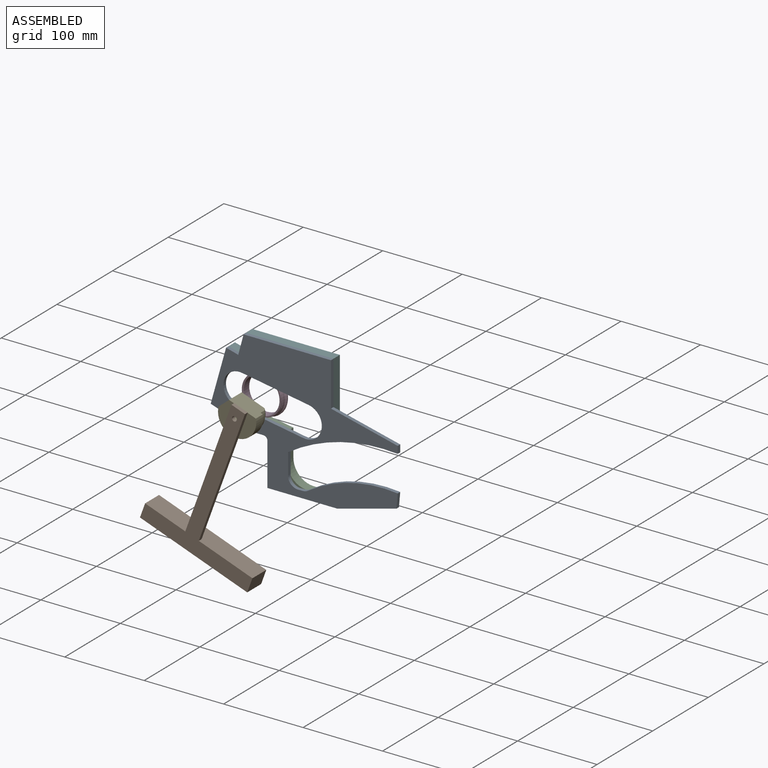
[diagram: assembled view]
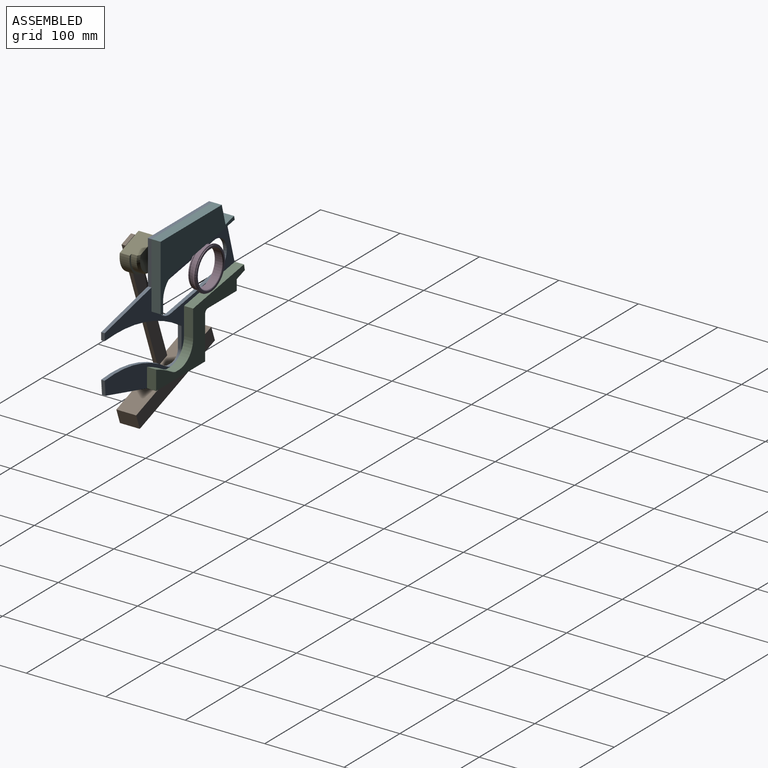
[diagram: assembled view, second angle]
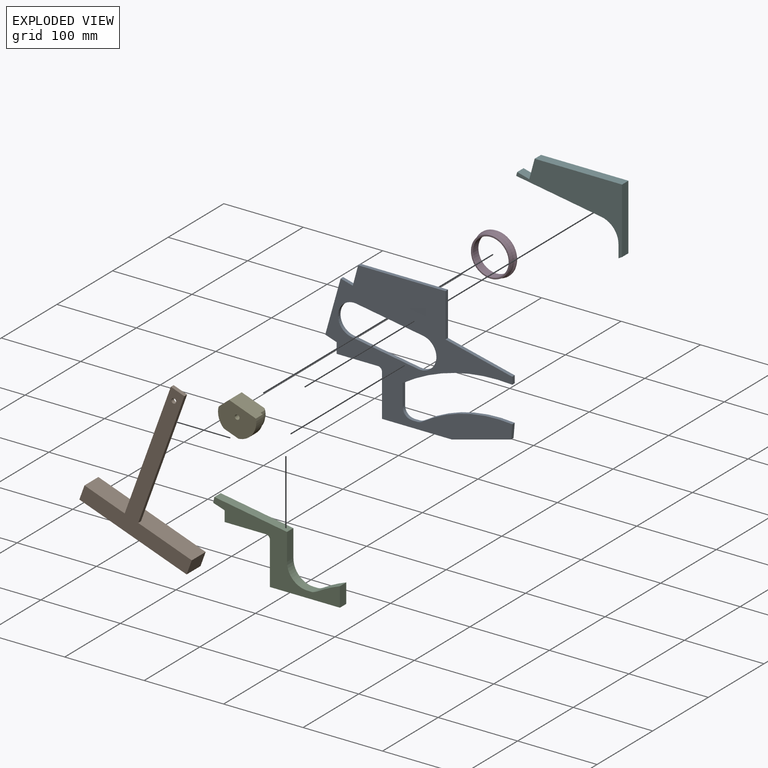
[diagram: exploded view]
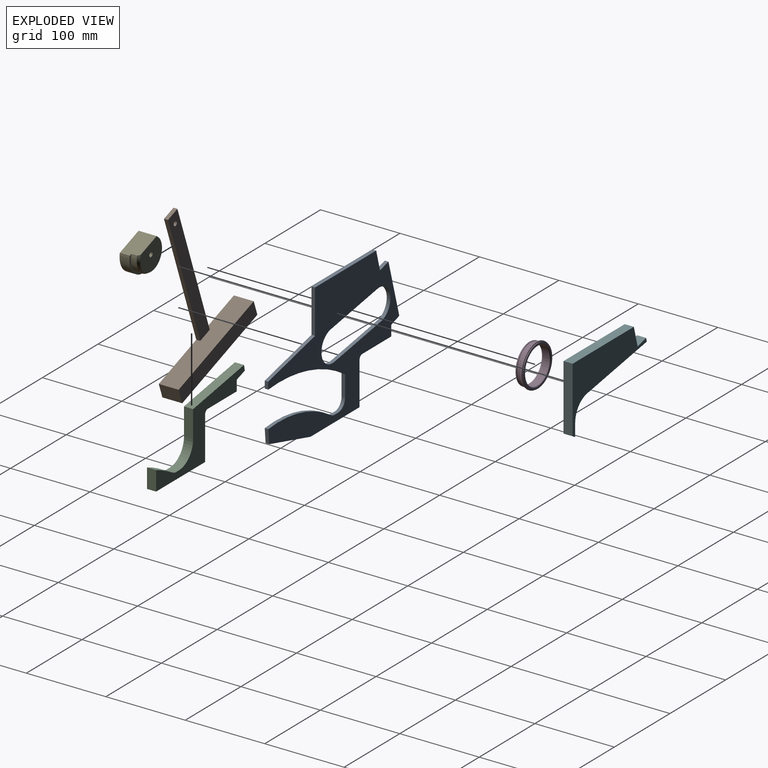
[diagram: exploded view, second angle]
ASSEMBLY  parts=6 mates=5
PART A: 28 faces, bbox 235.4x4.5x166.7 mm
  f0: cylinder r=20mm len=39.73mm, axis (0,1,0), area 282.7mm2, adj f1,f25,f26,f27
  f1: plane 83.83x14.03mm, normal (0.17,0,0.99), area 382.5mm2, adj f0,f2,f26,f27
  f2: cylinder r=20mm len=39.73mm, axis (0,1,0), area 282.7mm2, adj f1,f25,f26,f27
  f3: plane 14.4x4.7mm, normal (-0.31,0,-0.95), area 68.2mm2, adj f4,f24,f26,f27
  f4: plane 13.3x4.5mm, normal (-1,0,0), area 59.9mm2, adj f3,f5,f26,f27
  f5: plane 52x4.5mm, normal (0,0,-1), area 234mm2, adj f4,f6,f26,f27
  f6: cylinder r=5mm len=5mm, axis (0,1,0), area 35.3mm2, adj f5,f7,f26,f27
  f7: plane 53.7x4.5mm, normal (-1,0,0), area 241.6mm2, adj f6,f8,f26,f27
  f8: plane 88.1x4.5mm, normal (0,0,-1), area 396.4mm2, adj f7,f9,f26,f27
  f9: plane 74.35x19.92mm, normal (0.26,0,-0.97), area 346.4mm2, adj f8,f10,f26,f27
  f10: plane 17.72x4.5mm, normal (1,0,-0.09), area 80mm2, adj f9,f11,f26,f27
  f11: cylinder r=170.5mm len=112.87mm, axis (0,1,0), area 533mm2, adj f10,f12,f26,f27
  f12: cylinder r=12.3mm len=6.77mm, axis (0,1,0), area 32.3mm2, adj f11,f13,f26,f27
  f13: plane 6.06x4.5mm, normal (0,0,1), area 27.3mm2, adj f12,f14,f26,f27
  f14: cylinder r=12.3mm len=12.3mm, axis (0,1,0), area 86.9mm2, adj f13,f15,f26,f27
  f15: plane 26.26x4.5mm, normal (1,0,0), area 118.2mm2, adj f14,f16,f26,f27
  f16: cylinder r=1mm len=4.5mm, axis (0,1,0), area 4.4mm2, adj f15,f17,f26,f27
  f17: cylinder r=215.28mm len=137.55mm, axis (0,1,0), area 650.6mm2, adj f16,f18,f26,f27
  f18: plane 9.06x4.5mm, normal (1,0,0), area 40.8mm2, adj f17,f19,f26,f27
  f19: plane 84x20mm, normal (0.23,0,0.97), area 388.6mm2, adj f18,f20,f26,f27
  f20: plane 55x4.5mm, normal (1,0,0), area 247.5mm2, adj f19,f21,f26,f27
  f21: plane 110x4.5mm, normal (0,0,1), area 495mm2, adj f20,f22,f26,f27
  f22: plane 25.09x6.72mm, normal (-0.97,0,0.26), area 116.9mm2, adj f21,f23,f26,f27
  f23: plane 15.28x4.5mm, normal (0.26,0,0.97), area 71.2mm2, adj f22,f24,f26,f27
  f24: plane 69x19.4mm, normal (-0.96,0,0.27), area 322.5mm2, adj f3,f23,f26,f27
  f25: plane 83.83x14.03mm, normal (-0.17,0,-0.99), area 382.5mm2, adj f0,f2,f26,f27
  f26: plane 235.4x166.7mm, normal (0,-1,0), area 16034.4mm2, adj f0,f1,f2,f3,f4,f5,f6,f7
  f27: plane 235.4x166.7mm, normal (0,1,0), area 16034.4mm2, adj f0,f1,f2,f3,f4,f5,f6,f7
PART B: 11 faces, bbox 143.7x25x188.9 mm
  f0: plane 18.11x5mm, normal (0,0,1), area 90.5mm2, adj f1,f3,f4,f5
  f1: plane 169.91x5mm, normal (-1,0,0), area 849.6mm2, adj f0,f4,f5,f6
  f2: cylinder r=3mm len=6mm, axis (0,1,0), area 94.2mm2, adj f4,f5
  f3: plane 169.91x5mm, normal (1,0,0), area 849.6mm2, adj f0,f4,f5,f6
  f4: plane 188.86x143.7mm, normal (0,-1,0), area 5771.3mm2, adj f0,f1,f2,f3,f6,f7,f8,f9
  f5: plane 169.91x18.11mm, normal (0,1,0), area 3048.3mm2, adj f0,f1,f2,f3,f6
  f6: plane 143.7x25mm, normal (0,0,1), area 3501.8mm2, adj f1,f3,f4,f5,f7,f9,f10
  f7: plane 25x18.95mm, normal (-1,0,0), area 473.8mm2, adj f4,f6,f8,f10
  f8: plane 143.7x25mm, normal (0,0,-1), area 3592.4mm2, adj f4,f7,f9,f10
  f9: plane 25x18.95mm, normal (1,0,0), area 473.8mm2, adj f4,f6,f8,f10
  f10: plane 143.7x18.95mm, normal (0,1,0), area 2723mm2, adj f6,f7,f8,f9
PART C: 16 faces, bbox 159.5x11.5x83.7 mm
  f0: plane 91.5x15.31mm, normal (0.17,0,0.99), area 1066.9mm2, adj f1,f13,f14,f15
  f1: plane 11.5x7mm, normal (-0.98,0,0.2), area 82.1mm2, adj f0,f2,f14,f15
  f2: plane 14.4x11.5mm, normal (-0.31,0,-0.95), area 174.2mm2, adj f1,f3,f14,f15
  f3: plane 13.3x11.5mm, normal (-1,0,0), area 152.9mm2, adj f2,f4,f14,f15
  f4: plane 52x11.5mm, normal (0,0,-1), area 598mm2, adj f3,f5,f14,f15
  f5: cylinder r=5mm len=11.5mm, axis (0,1,0), area 90.3mm2, adj f4,f6,f14,f15
  f6: plane 53.7x11.5mm, normal (-1,0,0), area 617.5mm2, adj f5,f7,f14,f15
  f7: plane 88.1x11.5mm, normal (0,0,-1), area 1013.1mm2, adj f6,f8,f14,f15
  f8: plane 24.46x11.5mm, normal (1,0,0), area 281.3mm2, adj f7,f9,f14,f15
  f9: cylinder r=166.3mm len=28.04mm, axis (0,1,0), area 357.3mm2, adj f8,f10,f14,f15
  f10: cylinder r=25.7mm len=11.5mm, axis (0,1,0), area 81.1mm2, adj f9,f11,f14,f15
  f11: plane 11.5x7.33mm, normal (0,0,1), area 84.2mm2, adj f10,f12,f14,f15
  f12: cylinder r=25.7mm len=25.68mm, axis (0,1,0), area 453.2mm2, adj f11,f13,f14,f15
  f13: plane 34.21x11.5mm, normal (1,0,0), area 393.4mm2, adj f0,f12,f14,f15
  f14: plane 159.5x83.7mm, normal (0,-1,0), area 3650.3mm2, adj f0,f1,f2,f3,f4,f5,f6,f7
  f15: plane 159.5x83.7mm, normal (0,1,0), area 3650.3mm2, adj f0,f1,f2,f3,f4,f5,f6,f7
PART D: 28 faces, bbox 61.4x61.4x11.5 mm
  f0: plane 53.4x53.4mm, normal (0,0,1), area 164.6mm2, adj f1,f27
  f1: cylinder r=26.7mm len=53.4mm, axis (0,0,1), area 162.8mm2, adj f0,f2
  f2: torus R=25.7mm, axis (0,0,1), area 152mm2, adj f1,f3
  f3: torus R=28.35mm, axis (0,0,1), area 523.2mm2, adj f2,f4
  f4: torus R=25.3mm, axis (0,0,1), area 54.1mm2, adj f3,f5
  f5: cylinder r=24.9mm len=49.8mm, axis (0,0,1), area 142.8mm2, adj f4,f6
  f6: torus R=24.6mm, axis (0,0,1), area 43.5mm2, adj f5,f7
  f7: cone r=24.78mm half-angle=53.1deg, axis (0,0,1), area 31mm2, adj f6,f8
  f8: torus R=25.1mm, axis (0,0,1), area 113.8mm2, adj f7,f9
  f9: cylinder r=24.3mm len=48.6mm, axis (0,0,1), area 137.4mm2, adj f8,f10
  f10: torus R=24.6mm, axis (0,0,1), area 72.3mm2, adj f9,f11
  f11: plane 49.8x49.8mm, normal (0,0,1), area 46.7mm2, adj f10,f12
  f12: cylinder r=24.9mm len=49.8mm, axis (0,0,1), area 93.9mm2, adj f11,f13
  f13: torus R=24.1mm, axis (0,0,1), area 9.3mm2, adj f12,f14
  f14: torus R=25.99mm, axis (0,0,1), area 92.5mm2, adj f13,f15
  f15: torus R=24.5mm, axis (0,0,1), area 67.2mm2, adj f14,f16
  f16: plane 49x49mm, normal (0,0,-1), area 180.2mm2, adj f15,f17
  f17: torus R=23.3mm, axis (0,0,1), area 179.9mm2, adj f16,f18
  f18: cylinder r=22.5mm len=45mm, axis (0,0,1), area 1300.6mm2, adj f17,f19
  f19: torus R=23.5mm, axis (0,0,1), area 225.7mm2, adj f18,f20
  f20: plane 51.5x51.5mm, normal (0,0,1), area 348.1mm2, adj f19,f21
  f21: torus R=25.75mm, axis (0,0,1), area 63.9mm2, adj f20,f22
  f22: cylinder r=26mm len=52mm, axis (0,0,1), area 19.8mm2, adj f21,f23
  f23: torus R=25.8mm, axis (0,0,1), area 22.9mm2, adj f22,f24
  f24: cone r=25.64mm half-angle=70.8deg, axis (0,0,1), area 54.4mm2, adj f23,f25
  f25: torus R=25.7mm, axis (0,0,1), area 40mm2, adj f24,f26
  f26: cylinder r=25.5mm len=51mm, axis (0,0,1), area 72.1mm2, adj f25,f27
  f27: torus R=25.7mm, axis (0,0,1), area 50.5mm2, adj f0,f26
PART E: 11 faces, bbox 22.8x35.7x48 mm
  f0: plane 47.98x34.5mm, normal (1,0,0), area 1374.6mm2, adj f1,f2,f7,f8,f9,f10
  f1: cylinder r=24.05mm len=19.58mm, axis (-1,0,0), area 316.9mm2, adj f0,f3,f8,f9
  f2: cylinder r=24.05mm len=34.5mm, axis (-1,0,0), area 511.5mm2, adj f0,f3,f7,f9
  f3: plane 47.98x34.5mm, normal (-1,0,0), area 188.5mm2, adj f1,f2,f5,f7,f8,f9
  f4: plane 39.54x32.27mm, normal (-1,0,0), area 1043.4mm2, adj f6,f7,f8,f10
  f5: cylinder r=21.5mm len=43mm, axis (-1,0,0), area 600.5mm2, adj f3,f6,f7,f8
  f6: cone r=19.77mm half-angle=30deg, axis (1,0,0), area 285.5mm2, adj f4,f5,f7,f8
  f7: plane 35.93x22.82mm, normal (0,-1,0), area 781.3mm2, adj f0,f2,f3,f4,f5,f6,f8
  f8: plane 22.75x14.92mm, normal (0,-0.5,-0.87), area 332.9mm2, adj f0,f1,f3,f4,f5,f6,f7
  f9: plane 19.43x12.5mm, normal (0,1,0), area 242.9mm2, adj f0,f1,f2,f3
  f10: cylinder r=3mm len=22.75mm, axis (-1,0,0), area 428.8mm2, adj f0,f4
PART F: 11 faces, bbox 133.3x11.5x85.1 mm
  f0: plane 107.3x17.96mm, normal (-0.17,0,-0.99), area 1251.1mm2, adj f1,f8,f9,f10
  f1: cylinder r=25.7mm len=25.35mm, axis (0,1,0), area 415.2mm2, adj f0,f2,f9,f10
  f2: plane 16.1x11.5mm, normal (-1,0,0), area 185.1mm2, adj f1,f3,f9,f10
  f3: plane 11.5x4.5mm, normal (0.5,0,-0.87), area 59.8mm2, adj f2,f4,f9,f10
  f4: plane 82.5x11.5mm, normal (1,0,0), area 948.8mm2, adj f3,f5,f9,f10
  f5: plane 110x11.5mm, normal (0,0,1), area 1265mm2, adj f4,f6,f9,f10
  f6: plane 25.09x11.5mm, normal (-0.97,0,0.26), area 298.8mm2, adj f5,f7,f9,f10
  f7: plane 15.28x11.5mm, normal (0.26,0,0.97), area 181.9mm2, adj f6,f8,f9,f10
  f8: plane 11.5x4.7mm, normal (-0.97,0,0.26), area 56mm2, adj f0,f7,f9,f10
  f9: plane 133.26x85.1mm, normal (0,-1,0), area 4702.7mm2, adj f0,f1,f2,f3,f4,f5,f6,f7
  f10: plane 133.26x85.1mm, normal (0,1,0), area 4702.7mm2, adj f0,f1,f2,f3,f4,f5,f6,f7
PLACE A t=(-164.59,51.12,-165.73)mm
PLACE B rot(axis=(0,1,0),20deg) t=(-95.02,-21.51,-222.9)mm
PLACE C t=(-192.66,62.62,-196.68)mm
PLACE D rot(axis=(-1,0,0),90deg) t=(-128.29,51.82,-166.35)mm
PLACE E rot(axis=(-0.63,0.63,-0.44),132.1deg) t=(-107.96,-16.79,-158.13)mm
PLACE F t=(-130.33,62.62,-109.01)mm
MATE fastened C.f7 <-> A.f8  axis (0,0,1) through (-117.53,51.12,-267.21)mm
MATE fastened E.f1 <-> B.f2  axis (0,-1,0) through (-107.96,-21.51,-158.13)mm
MATE fastened A.f27 <-> F.f9  axis (0,1,0) through (-147.53,51.12,-100.51)mm
MATE planar D.f1 <-> A.f27  axis (0,-1,0) through (-128.29,51.12,-166.35)mm
MATE planar F.f4 <-> A.f20  axis (1,0,0) through (-37.53,56.87,-141.76)mm
